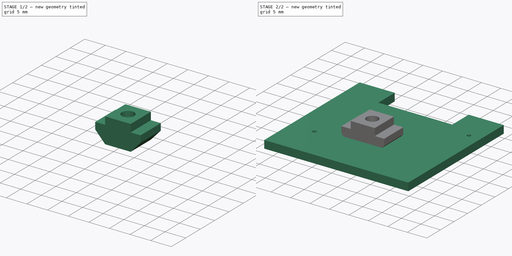
[diagram: build sequence overview — one tinted view per stage of 2, left to right]
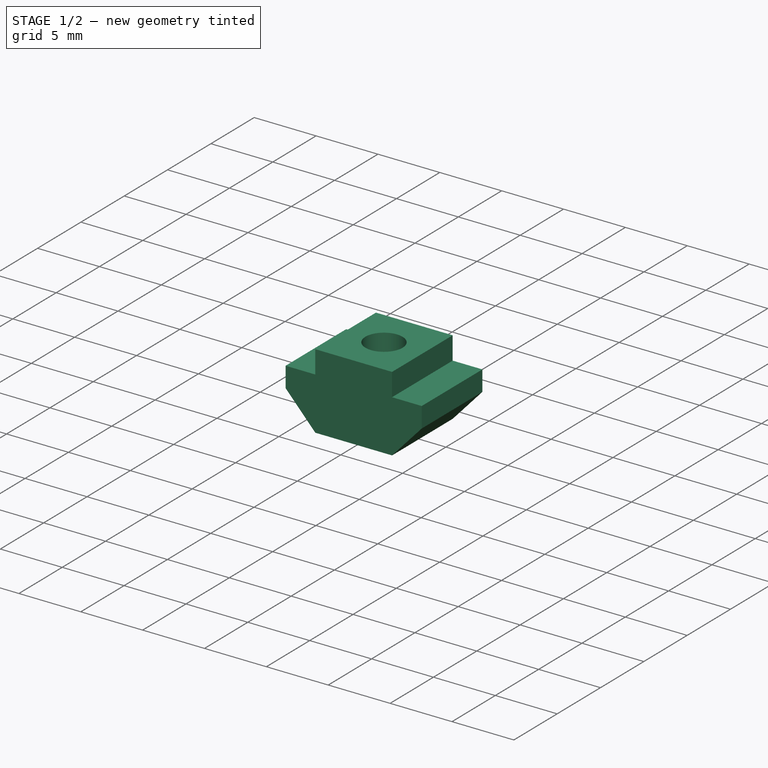
[diagram: stage 1 of 2 — iso view after this stage's code; geometry added in this stage tinted green]
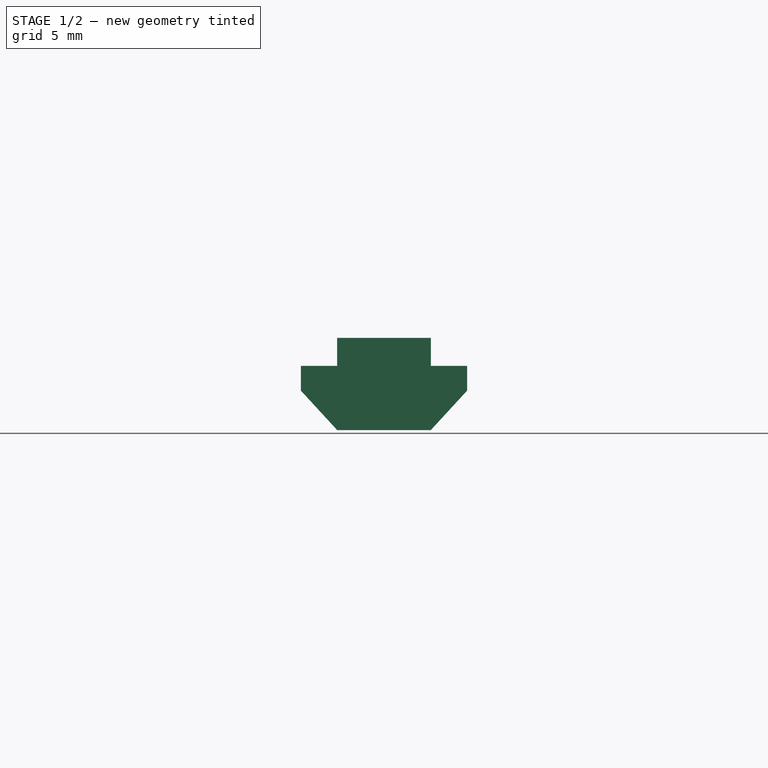
[diagram: stage 1 of 2 — front view after this stage's code; geometry added in this stage tinted green]
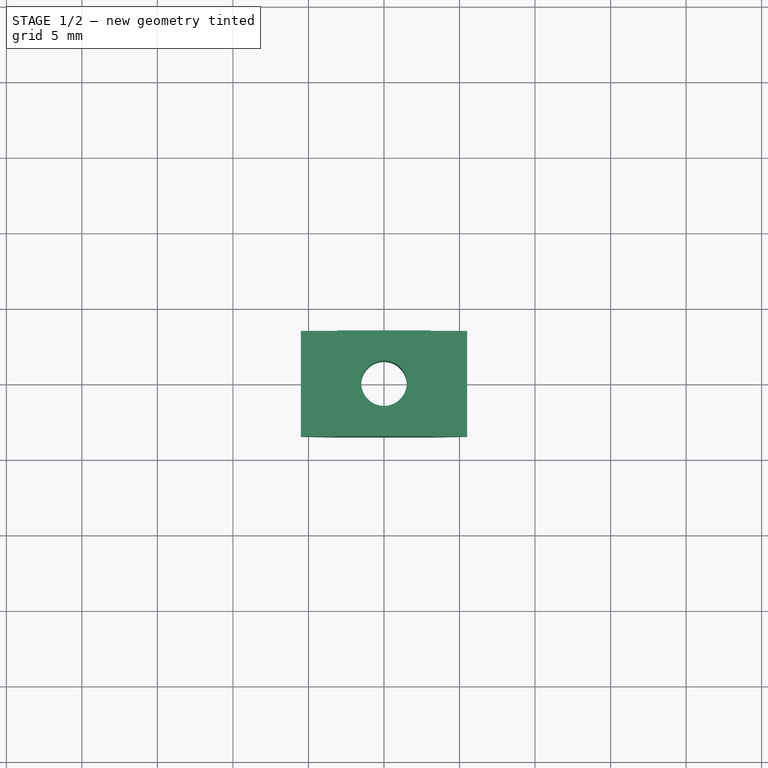
[diagram: stage 1 of 2 — top view after this stage's code; geometry added in this stage tinted green]
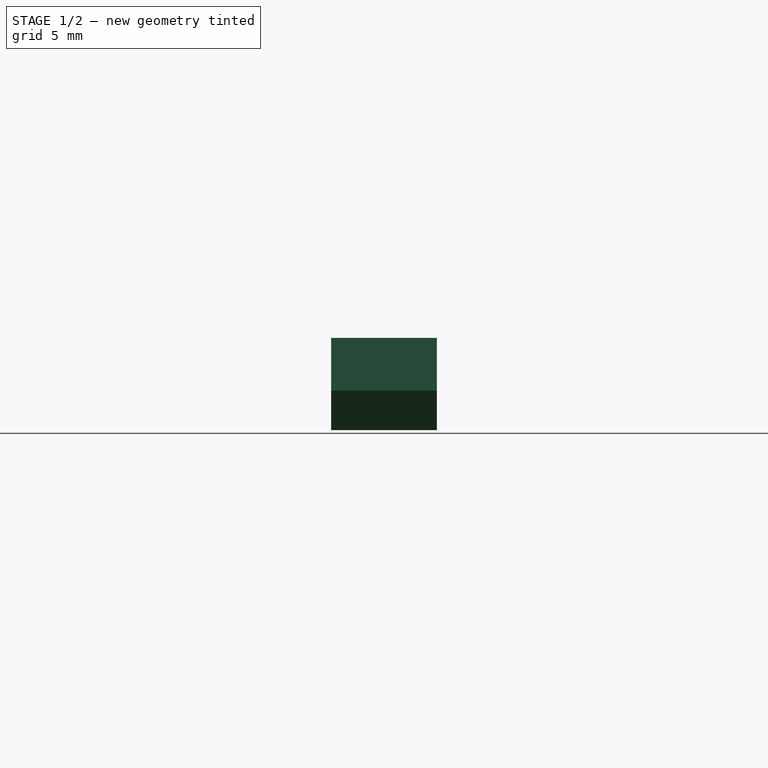
[diagram: stage 1 of 2 — right view after this stage's code; geometry added in this stage tinted green]
FCSTD DOCUMENT  (FreeCAD 0.22R38553 (Git))
Label: board
License: All rights reserved
LicenseURL: https://en.wikipedia.org/wiki/All_rights_reserved
objects: Sketcher::SketchObject×4, PartDesign::Body×3, Part::Feature×3, PartDesign::Pad×2, App::Part×1, PartDesign::Pocket×1, Spreadsheet::Sheet×1
note: 23 computed .brp shape members not serialized (recipe doc carries the construction recipe); baked Part::Feature solids carry a one-line shape summary decoded from their .brp

FEATURE [PartDesign::Body] Body
  AllowCompound = false
  Group = -> [Sketch,Pad]
  Origin = -> Origin
  Tip = -> Pad
FEATURE [Part::Feature] Path
  shape: bbox 39 x 31 x 2e-07 mm, 0 faces, 0 solids (baked)
FEATURE [Part::Feature] Circle
  Placement = pos=(11.336,-34.144,0) rot=(0,0,1;0rad)
  shape: bbox 3 x 3 x 2e-07 mm, 1 faces, 0 solids (baked)
FEATURE [Part::Feature] Circle002
  Placement = pos=(40.8,-16.364,0) rot=(0,0,1;0rad)
  shape: bbox 3 x 3 x 2e-07 mm, 1 faces, 0 solids (baked)
FEATURE [App::Part] Part
  Group = -> [Path,Circle002,Circle]
  Origin = -> Origin001
  Placement = pos=(-6,37.7,0) rot=(0,0,1;0rad)
FEATURE [Sketcher::SketchObject] Sketch001
  ArcFitTolerance = 1e-06
  AttachmentSupport = -> [XZ_Plane003]
  FullyConstrained = true
  MakeInternals = false
  MapMode = 5
  Placement = pos=(0,0,0) rot=(1,0,0;1.5708rad)
  sketch-geometry (10):
    g0: LineSegment StartX=-3.1 StartY=0 StartZ=0 EndX=3.1 EndY=0 EndZ=0
    g1: LineSegment StartX=5.5 StartY=4.25 StartZ=0 EndX=3.1 EndY=4.25 EndZ=0
    g2: LineSegment StartX=3.1 StartY=4.25 StartZ=0 EndX=3.1 EndY=6.1 EndZ=0
    g3: LineSegment StartX=3.1 StartY=6.1 StartZ=0 EndX=-3.1 EndY=6.1 EndZ=0
    g4: LineSegment StartX=-3.1 StartY=6.1 StartZ=0 EndX=-3.1 EndY=4.25 EndZ=0
    g5: LineSegment StartX=-3.1 StartY=4.25 StartZ=0 EndX=-5.5 EndY=4.25 EndZ=0
    g6: LineSegment StartX=-5.5 StartY=4.25 StartZ=0 EndX=-5.5 EndY=2.61 EndZ=0
    g7: LineSegment StartX=-5.5 StartY=2.61 StartZ=0 EndX=-3.1 EndY=0 EndZ=0
    g8: LineSegment StartX=3.1 StartY=0 StartZ=0 EndX=5.5 EndY=2.61 EndZ=0
    g9: LineSegment StartX=5.5 StartY=2.61 StartZ=0 EndX=5.5 EndY=4.25 EndZ=0
  constraints (30):
    c: Coincident(g1,g2)
    c: Vertical(g2)
    c: Coincident(g2,g3)
    c: Horizontal(g3)
    c: Coincident(g3,g4)
    c: Coincident(g4,g5)
    c: Horizontal(g1)
    c: Horizontal(g0)
    c: Horizontal(g5)
    c: Parallel(g4,g2)
    c: Symmetric(g1,g4,g-2)
    c: Vertical(g0,g1)
    c: Vertical(g4,g0)
    c: Equal(g1,g5)
    c: DistanceY(g0,g1) = 4.25
    c: DistanceY(g2,g2) = 1.85
    c: DistanceY(g0,g2) = 6.1
    c: PointOnObject(g-1,g0)
    c: DistanceX(g0,g0) = 6.2
    c: Coincident(g5,g6)
    c: Vertical(g6)
    c: Coincident(g6,g7)
    c: Coincident(g0,g8)
    c: Coincident(g8,g9)
    c: Coincident(g9,g1)
    c: DistanceX(g5,g1) = 11
    c: Vertical(g9)
    c: Equal(g6,g9)
    c: DistanceY(g9,g9) = 1.64
    c: Coincident(g7,g0)
FEATURE [PartDesign::Pad] Pad001
  Direction = (0,-1,2e-16)
  Length = 3.5
  Length2 = 3.5
  Placement = pos=(0,0,0) rot=(1,0,0;1.5708rad)
  Profile = -> Sketch001
  ReferenceAxis = -> Sketch001 [N_Axis]
  Suppressed = false
  Type = 4
FEATURE [Sketcher::SketchObject] Sketch002
  ArcFitTolerance = 1e-06
  AttachmentSupport = -> [Pad001]
  FullyConstrained = true
  MakeInternals = false
  MapMode = 5
  Placement = pos=(0,1.4e-15,6.1) rot=(0,0,1;3.14159rad)
  sketch-geometry (1):
    g0: Circle CenterX=0 CenterY=0 CenterZ=0 NormalX=0 NormalY=0 NormalZ=1 AngleXU=0 Radius=1.5
  constraints (2):
    c: Diameter(g0) = 3
    c: Coincident(g0,g-1)
FEATURE [PartDesign::Pocket] Pocket
  BaseFeature = -> Pad001
  Direction = (0,0,-1)
  Length = 5
  Length2 = 5
  Placement = pos=(0,0,0) rot=(1,0,0;1.5708rad)
  Profile = -> Sketch002
  ReferenceAxis = -> Sketch002 [N_Axis]
  Suppressed = false
  Type = 1
FEATURE [PartDesign::Body] Body002  label="tNut"
  AllowCompound = false
  Group = -> [Sketch001,Pad001,Sketch002,Pocket]
  Origin = -> Origin003
  Tip = -> Pocket
FEATURE [Sketcher::SketchObject] Sketch003
  ArcFitTolerance = 1e-06
  AttachmentSupport = -> [XY_Plane002]
  FullyConstrained = false
  MakeInternals = false
  MapMode = 5
  sketch-geometry (43):
    g0: Circle CenterX=10.4344 CenterY=20.4097 CenterZ=0 NormalX=0 NormalY=0 NormalZ=1 AngleXU=0 Radius=1.5
    g1: Circle CenterX=30.4344 CenterY=20.4097 CenterZ=0 NormalX=0 NormalY=0 NormalZ=1 AngleXU=0 Radius=1.5
    g2: Circle CenterX=30.4344 CenterY=5.40972 CenterZ=0 NormalX=0 NormalY=0 NormalZ=1 AngleXU=0 Radius=1.5
    g3: Circle CenterX=10.4344 CenterY=5.40972 CenterZ=0 NormalX=0 NormalY=0 NormalZ=1 AngleXU=0 Radius=1.5
    g4: LineSegment [constr] StartX=31.9344 StartY=3.90972 StartZ=0 EndX=31.9344 EndY=6.90972 EndZ=0
    g5: LineSegment [constr] StartX=31.9344 StartY=6.90972 StartZ=0 EndX=28.9344 EndY=6.90972 EndZ=0
    g6: LineSegment [constr] StartX=28.9344 StartY=6.90972 StartZ=0 EndX=28.9344 EndY=3.90972 EndZ=0
    g7: LineSegment [constr] StartX=28.9344 StartY=3.90972 StartZ=0 EndX=31.9344 EndY=3.90972 EndZ=0
    g8: GeomPoint [constr] X=30.4344 Y=5.40972 Z=0
    g9: LineSegment [constr] StartX=31.9344 StartY=18.9097 StartZ=0 EndX=31.9344 EndY=21.9097 EndZ=0
    g10: LineSegment [constr] StartX=31.9344 StartY=21.9097 StartZ=0 EndX=28.9344 EndY=21.9097 EndZ=0
    g11: LineSegment [constr] StartX=28.9344 StartY=21.9097 StartZ=0 EndX=28.9344 EndY=18.9097 EndZ=0
    g12: LineSegment [constr] StartX=28.9344 StartY=18.9097 StartZ=0 EndX=31.9344 EndY=18.9097 EndZ=0
    g13: GeomPoint [constr] X=30.4344 Y=20.4097 Z=0
    g14: LineSegment [constr] StartX=8.93444 StartY=18.9097 StartZ=0 EndX=11.9344 EndY=18.9097 EndZ=0
    g15: LineSegment [constr] StartX=11.9344 StartY=18.9097 StartZ=0 EndX=11.9344 EndY=21.9097 EndZ=0
    g16: LineSegment [constr] StartX=11.9344 StartY=21.9097 StartZ=0 EndX=8.93444 EndY=21.9097 EndZ=0
    g17: LineSegment [constr] StartX=8.93444 StartY=21.9097 StartZ=0 EndX=8.93444 EndY=18.9097 EndZ=0
    g18: GeomPoint [constr] X=10.4344 Y=20.4097 Z=0
    g19: LineSegment [constr] StartX=8.93444 StartY=3.90972 StartZ=0 EndX=11.9344 EndY=3.90972 EndZ=0
    g20: LineSegment [constr] StartX=11.9344 StartY=3.90972 StartZ=0 EndX=11.9344 EndY=6.90972 EndZ=0
    g21: LineSegment [constr] StartX=11.9344 StartY=6.90972 StartZ=0 EndX=8.93444 EndY=6.90972 EndZ=0
    g22: LineSegment [constr] StartX=8.93444 StartY=6.90972 StartZ=0 EndX=8.93444 EndY=3.90972 EndZ=0
    g23: GeomPoint [constr] X=10.4344 Y=5.40972 Z=0
    g24: LineSegment StartX=8.93444 StartY=18.9097 StartZ=0 EndX=8.93444 EndY=6.90972 EndZ=0
    g25: LineSegment StartX=11.9344 StartY=3.90972 StartZ=0 EndX=28.9344 EndY=3.90972 EndZ=0
    g26: LineSegment StartX=31.9344 StartY=6.90972 StartZ=0 EndX=31.9344 EndY=18.9097 EndZ=0
    g27: LineSegment StartX=28.9344 StartY=21.9097 StartZ=0 EndX=28.9344 EndY=27.3869 EndZ=0
    g28: LineSegment StartX=28.9344 StartY=27.3869 StartZ=0 EndX=43.988 EndY=27.3869 EndZ=0
    g29: LineSegment StartX=43.988 StartY=27.3869 StartZ=0 EndX=43.988 EndY=18.9097 EndZ=0
    g30: LineSegment StartX=43.988 StartY=18.9097 StartZ=0 EndX=31.9344 EndY=18.9097 EndZ=0
    g31: LineSegment StartX=28.9344 StartY=3.90972 StartZ=0 EndX=28.9344 EndY=-1.56743 EndZ=0
    g32: LineSegment StartX=28.9344 StartY=-1.56743 StartZ=0 EndX=43.988 EndY=-1.56743 EndZ=0
    g33: LineSegment StartX=43.988 StartY=-1.56743 StartZ=0 EndX=43.988 EndY=6.90972 EndZ=0
    g34: LineSegment StartX=43.988 StartY=6.90972 StartZ=0 EndX=31.9344 EndY=6.90972 EndZ=0
    g35: LineSegment StartX=11.9344 StartY=3.90972 StartZ=0 EndX=11.9344 EndY=-1.56743 EndZ=0
    g36: LineSegment StartX=11.9344 StartY=-1.56743 StartZ=0 EndX=-3.11916 EndY=-1.56743 EndZ=0
    g37: LineSegment StartX=-3.11916 StartY=-1.56743 StartZ=0 EndX=-3.11916 EndY=6.90972 EndZ=0
    g38: LineSegment StartX=-3.11916 StartY=6.90972 StartZ=0 EndX=8.93444 EndY=6.90972 EndZ=0
    g39: LineSegment StartX=8.93444 StartY=18.9097 StartZ=0 EndX=-3.11916 EndY=18.9097 EndZ=0
    g40: LineSegment StartX=-3.11916 StartY=18.9097 StartZ=0 EndX=-3.11916 EndY=27.3869 EndZ=0
    g41: LineSegment StartX=-3.11916 StartY=27.3869 StartZ=0 EndX=11.9344 EndY=27.3869 EndZ=0
    g42: LineSegment StartX=11.9344 StartY=27.3869 StartZ=0 EndX=11.9344 EndY=21.9097 EndZ=0
  constraints (106):
    c: Equal(g3,g0)
    c: Equal(g0,g1)
    c: Equal(g1,g2)
    c: Diameter(g2) = 3
    c: DistanceX(g0,g1) = 20
    c: Vertical(g1,g2)
    c: Vertical(g0,g3)
    c: Coincident(g4,g5)
    c: Coincident(g5,g6)
    c: Coincident(g6,g7)
    c: Coincident(g7,g4)
    c: Vertical(g4)
    c: Vertical(g6)
    c: Horizontal(g5)
    c: Horizontal(g7)
    c: Symmetric(g6,g4,g8)
    c: Coincident(g8,g2)
    c: Coincident(g9,g10)
    c: Coincident(g10,g11)
    c: Coincident(g11,g12)
    c: Coincident(g12,g9)
    c: Vertical(g9)
    c: Vertical(g11)
    c: Horizontal(g10)
    c: Horizontal(g12)
    c: Symmetric(g11,g9,g13)
    c: Coincident(g13,g1)
    c: Coincident(g14,g15)
    c: Coincident(g15,g16)
    c: Coincident(g16,g17)
    c: Coincident(g17,g14)
    c: Horizontal(g14)
    c: Horizontal(g16)
    c: Vertical(g15)
    c: Vertical(g17)
    c: Symmetric(g16,g14,g18)
    c: Coincident(g18,g0)
    c: Coincident(g19,g20)
    c: Coincident(g20,g21)
    c: Coincident(g21,g22)
    c: Coincident(g22,g19)
    c: Horizontal(g19)
    c: Horizontal(g21)
    c: Vertical(g20)
    c: Vertical(g22)
    c: Symmetric(g21,g19,g23)
    c: Coincident(g23,g3)
    c: DistanceX(g5,g5) = 3
    c: DistanceY(g4,g4) = 3
    c: Equal(g5,g10)
    c: Equal(g4,g9)
    c: Equal(g4,g20)
    c: Equal(g20,g15)
    c: Equal(g5,g21)
    c: Equal(g21,g16)
    c: Horizontal(g2,g3)
    c: DistanceY(g2,g1) = 15
    c: Coincident(g24,g14)
    c: Coincident(g24,g21)
    c: Coincident(g25,g19)
    c: Coincident(g25,g6)
    c: Coincident(g26,g4)
    c: Coincident(g26,g9)
    c: Coincident(g10,g27)
    c: Coincident(g27,g28)
    c: Coincident(g28,g29)
    c: Vertical(g29)
    c: Coincident(g29,g30)
    c: Coincident(g30,g9)
    c: Horizontal(g30)
    c: Coincident(g6,g31)
    c: Coincident(g31,g32)
    c: Coincident(g32,g33)
    c: Vertical(g33)
    c: Coincident(g33,g34)
    c: Coincident(g34,g4)
    c: Horizontal(g34)
    c: Coincident(g19,g35)
    c: Vertical(g35)
    c: Coincident(g35,g36)
    c: Coincident(g36,g37)
    c: Coincident(g37,g38)
    c: Coincident(g38,g21)
    c: Coincident(g14,g39)
    c: Coincident(g39,g40)
    c: Coincident(g40,g41)
    c: Coincident(g41,g42)
    c: Coincident(g42,g15)
    c: Equal(g28,g41)
    c: Equal(g33,g29)
    c: Equal(g29,g40)
    c: Equal(g40,g37)
    c: Equal(g41,g36)
    c: Equal(g36,g32)
    c: Horizontal(g28)
    c: Horizontal(g41)
    c: Horizontal(g36)
    c: Horizontal(g32)
    c: Horizontal(g31,g35)
    c: Horizontal(g27,g41)
    c: Vertical(g27)
    c: Vertical(g42)
    c: Vertical(g37)
    c: Vertical(g31)
    c: Horizontal(g39)
    c: Vertical(g40)
FEATURE [PartDesign::Body] Body001  label="body"
  AllowCompound = false
  Group = -> [Sketch003]
  Origin = -> Origin002
FEATURE [Spreadsheet::Sheet] Spreadsheet
  cells = B2='boardWidth; C2(boardWidth)=37; B3='boardHeight; C3(boardHeight)=29; B4='boardWidthHole; C4(boardWidthHole)=19
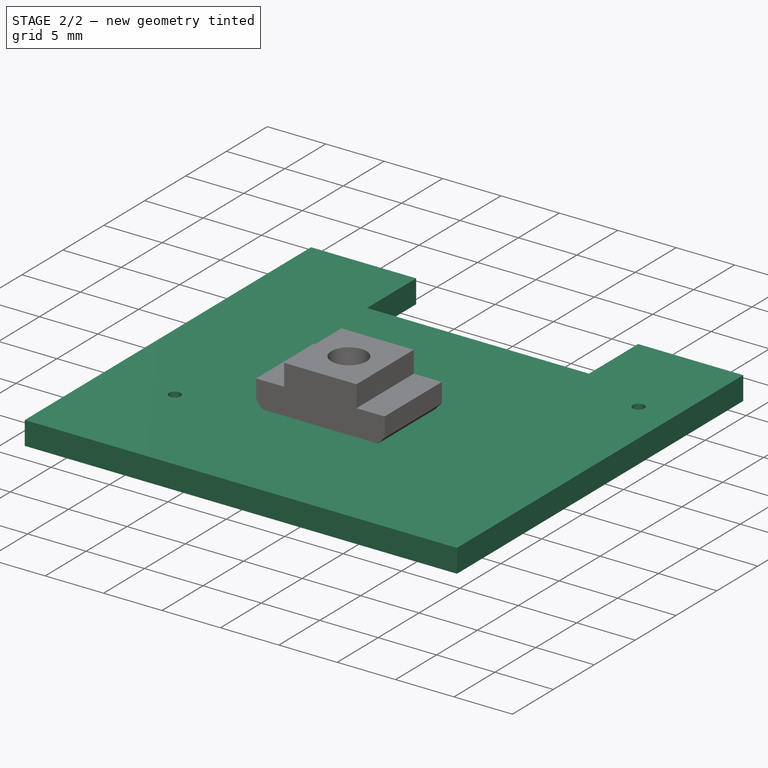
[diagram: stage 2 of 2 — iso view after this stage's code; geometry added in this stage tinted green]
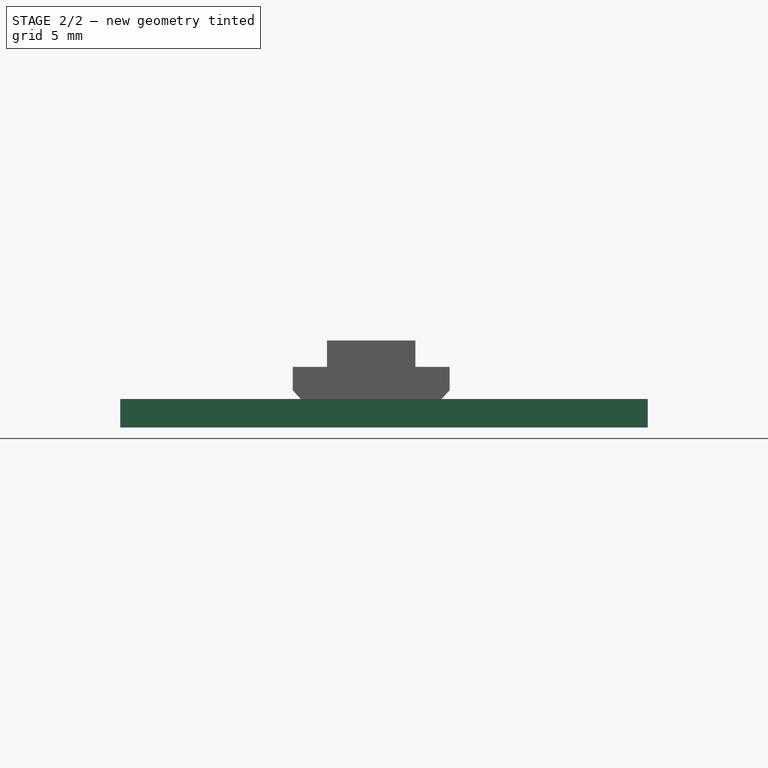
[diagram: stage 2 of 2 — front view after this stage's code; geometry added in this stage tinted green]
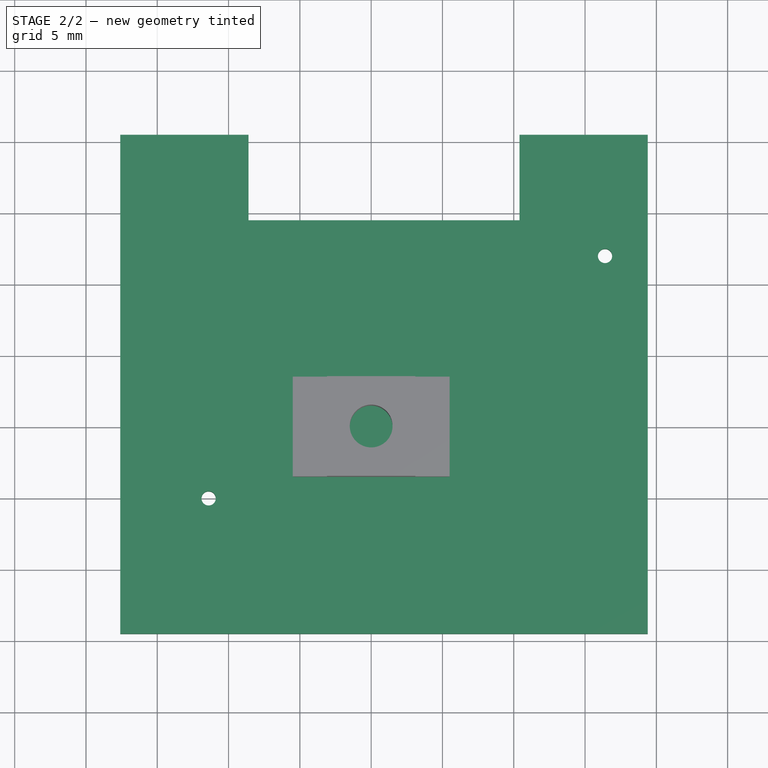
[diagram: stage 2 of 2 — top view after this stage's code; geometry added in this stage tinted green]
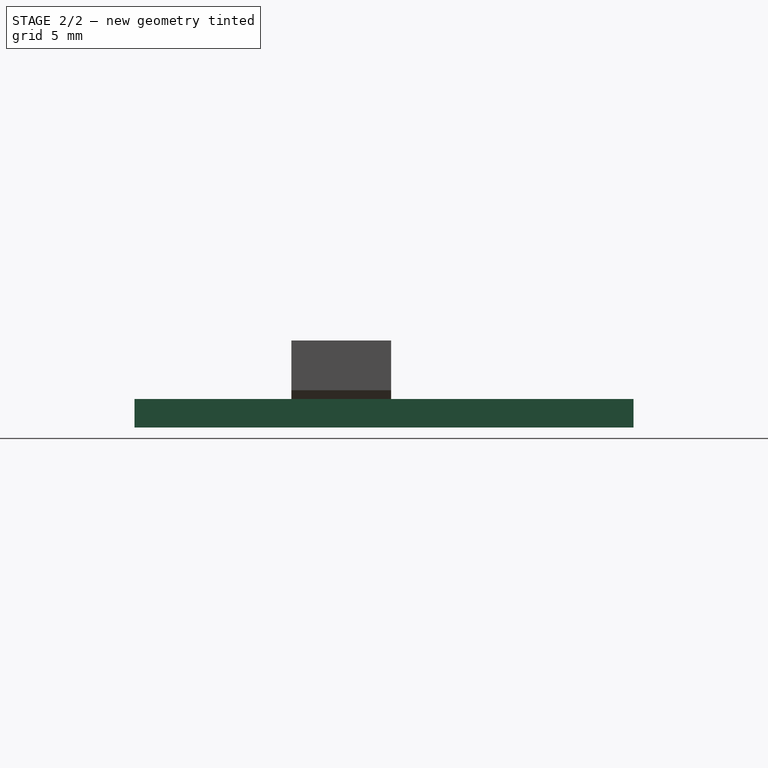
[diagram: stage 2 of 2 — right view after this stage's code; geometry added in this stage tinted green]
FEATURE [Sketcher::SketchObject] Sketch
  ArcFitTolerance = 1e-06
  AttachmentSupport = -> [XY_Plane]
  FullyConstrained = true
  MakeInternals = false
  MapMode = 5
  expr: Constraints[13] = Spreadsheet.boardWidthHole
  expr: Constraints[14] = Spreadsheet.boardHeight
  expr: Constraints[22] = Spreadsheet.boardWidth
  expr: Constraints[23] = Spreadsheet.boardHeight / 2
  sketch-geometry (10):
    g0: LineSegment StartX=-17.6 StartY=20.5 StartZ=0 EndX=-8.6 EndY=20.5 EndZ=0
    g1: LineSegment StartX=-8.6 StartY=20.5 StartZ=0 EndX=-8.6 EndY=14.5 EndZ=0
    g2: LineSegment StartX=-8.6 StartY=14.5 StartZ=0 EndX=10.4 EndY=14.5 EndZ=0
    g3: LineSegment StartX=10.4 StartY=14.5 StartZ=0 EndX=10.4 EndY=20.5 EndZ=0
    g4: LineSegment StartX=10.4 StartY=20.5 StartZ=0 EndX=19.4 EndY=20.5 EndZ=0
    g5: LineSegment StartX=19.4 StartY=20.5 StartZ=0 EndX=19.4 EndY=-14.5 EndZ=0
    g6: LineSegment StartX=19.4 StartY=-14.5 StartZ=0 EndX=-17.6 EndY=-14.5 EndZ=0
    g7: LineSegment StartX=-17.6 StartY=-14.5 StartZ=0 EndX=-17.6 EndY=20.5 EndZ=0
    g8: Circle CenterX=16.4 CenterY=12 CenterZ=0 NormalX=0 NormalY=0 NormalZ=1 AngleXU=0 Radius=0.5
    g9: Circle CenterX=-11.4 CenterY=-5 CenterZ=0 NormalX=0 NormalY=0 NormalZ=1 AngleXU=0 Radius=0.5
  constraints (30):
    c: Horizontal(g0)
    c: Coincident(g0,g1)
    c: Vertical(g1)
    c: Coincident(g1,g2)
    c: Coincident(g2,g3)
    c: Vertical(g3)
    c: Coincident(g3,g4)
    c: Coincident(g4,g5)
    c: Vertical(g5)
    c: Coincident(g5,g6)
    c: Horizontal(g6)
    c: Coincident(g6,g7)
    c: Coincident(g7,g0)
    c: DistanceX(g2,g2) = 19
    c: DistanceY(g5,g2) = 29
    c: Equal(g4,g0)
    c: Horizontal(g4)
    c: Vertical(g7)
    c: Horizontal(g2)
    c: DistanceY(g3,g3) = 6
    c: Horizontal(g3,g0)
    c: DistanceX(g-1,g4) = 19.4
    c: DistanceX(g6,g6) = 37
    c: DistanceY(g5,g-1) = 14.5
    c: Equal(g9,g8)
    c: Diameter(g8) = 1
    c: DistanceY(g8,g2) = 2.5
    c: DistanceX(g2,g8) = 6
    c: DistanceY(g6,g9) = 9.5
    c: DistanceX(g9,g1) = 2.8
FEATURE [PartDesign::Pad] Pad
  Direction = (0,0,1)
  Length = 2
  Length2 = 10
  Profile = -> Sketch
  ReferenceAxis = -> Sketch [N_Axis]
  Suppressed = false
  Type = 0
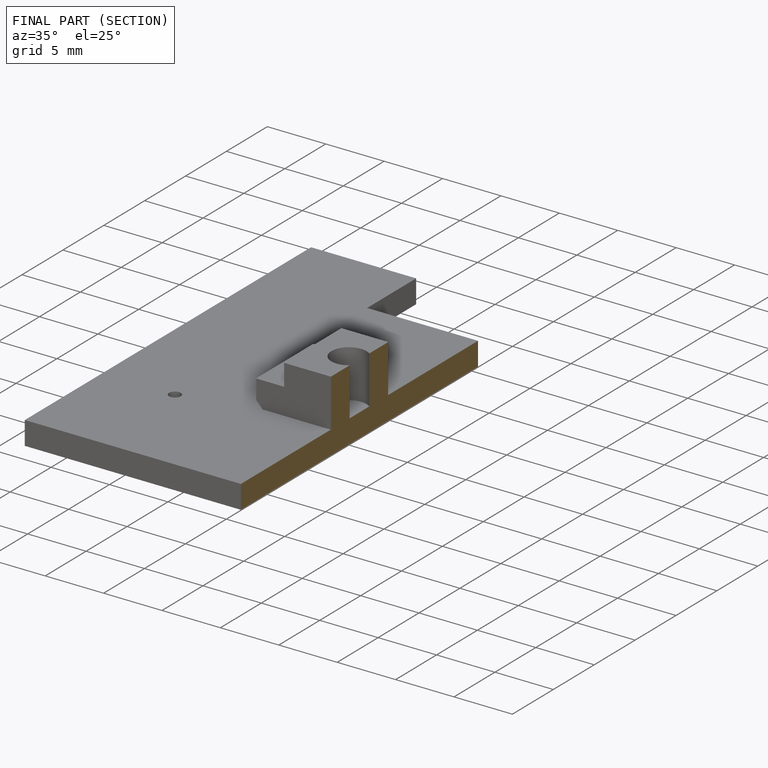
[diagram: finished part — half-section view (interior)]
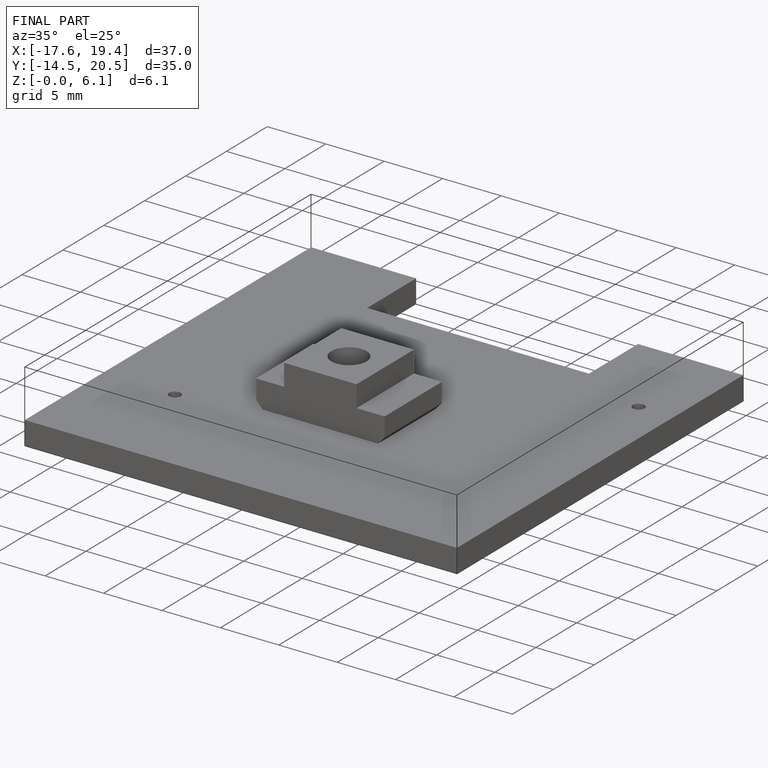
[diagram: finished part — iso view with bounding-box wireframe]
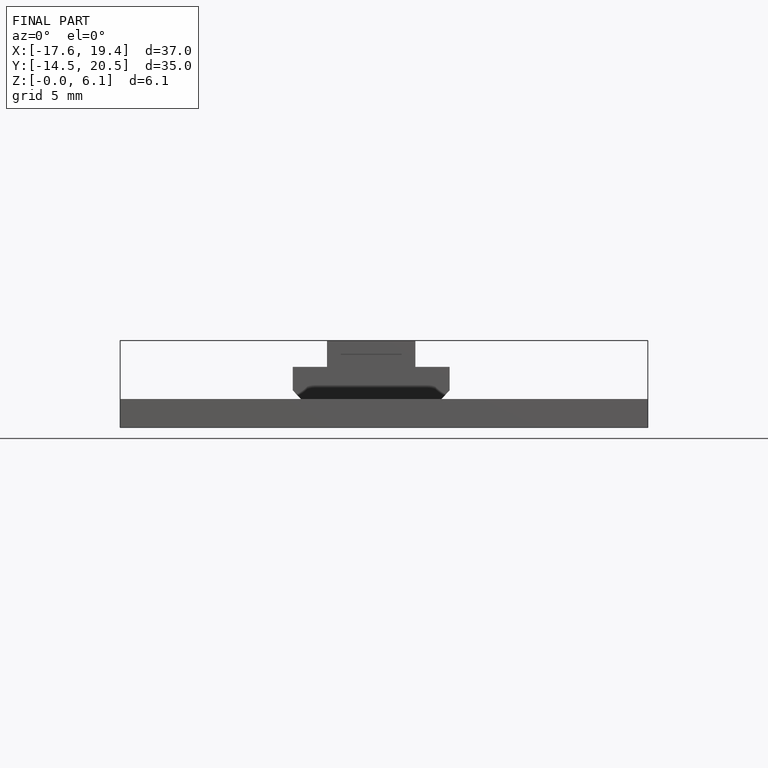
[diagram: finished part — front view with bounding-box wireframe]
